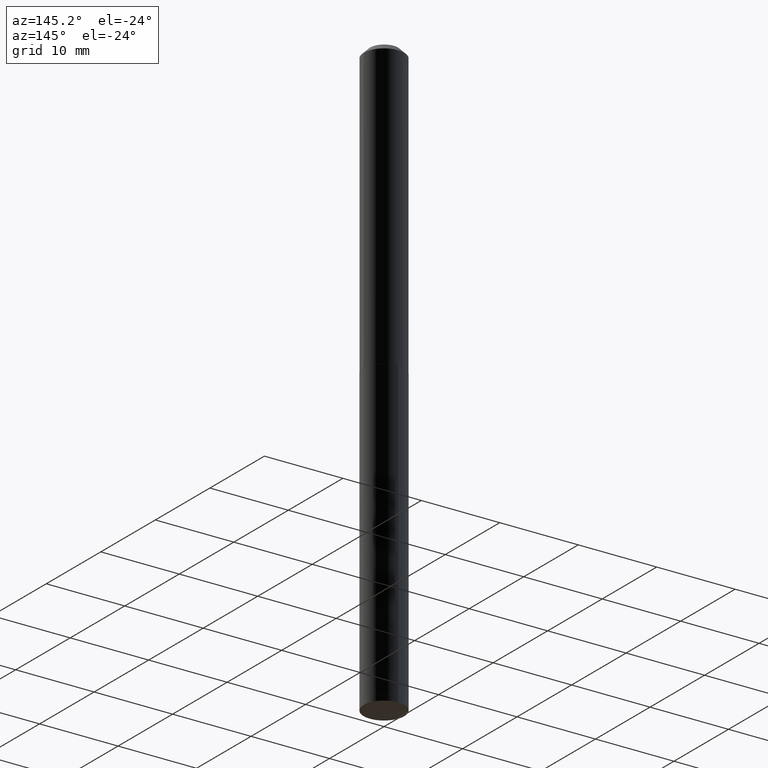
[diagram: clean part render]
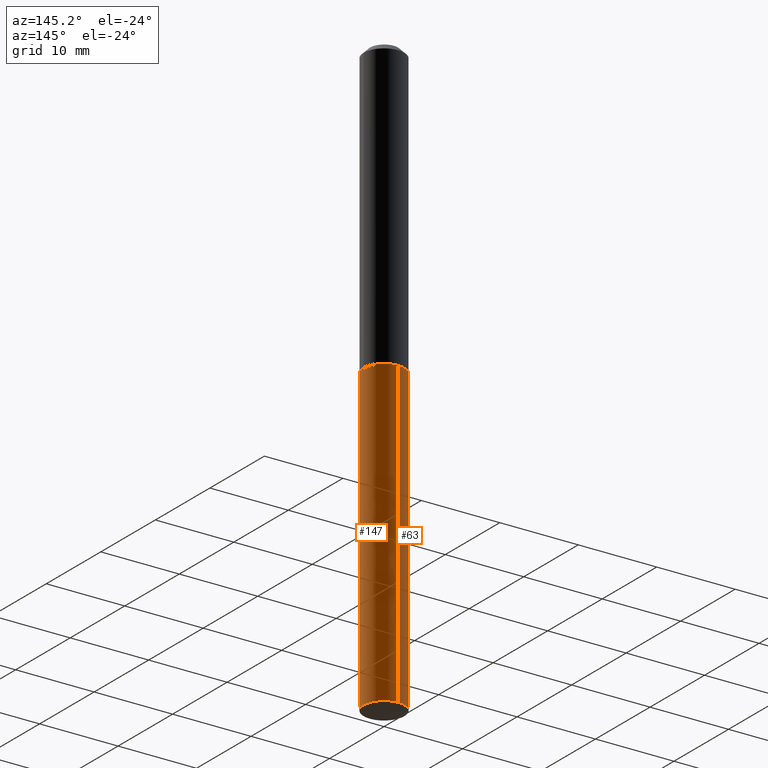
[diagram: same view with one multi-face feature highlighted, each face labeled with its STEP entity id]
A machine part, auxiliary view. The highlighted faces form ONE feature: a constant-radius fillet chain: 2 tangent blend faces with common blend radius 2.5794 mm. The faces share edges in the B-rep.
Their STEP definitions:
[1] entity #63 (Cylinder):
#3 = LINE ( 'NONE', #76, #219 ) ;
#16 = CIRCLE ( 'NONE', #227, 0.1015500000000000014 ) ;
#19 = CARTESIAN_POINT ( 'NONE',  ( 3.553510722267622762E-29, -5.073471533472975620E-15, -1.453100000000000502 ) ) ;
#28 = AXIS2_PLACEMENT_3D ( 'NONE', #236, #81, #266 ) ;
#40 = CARTESIAN_POINT ( 'NONE',  ( 7.215561481644546196E-16, 0.1015499999999896485, -2.972789759508621010 ) ) ;
#41 = EDGE_CURVE ( 'NONE', #70, #62, #16, .T. ) ;
#56 = CARTESIAN_POINT ( 'NONE',  ( 7.215561481644172473E-16, 0.1015499999999949360, -1.453100000000000724 ) ) ;
#61 = AXIS2_PLACEMENT_3D ( 'NONE', #19, #354, #144 ) ;
#62 = VERTEX_POINT ( 'NONE', #232 ) ;
#63 = ADVANCED_FACE ( 'NONE', ( #380 ), #387, .T. ) ;
#70 = VERTEX_POINT ( 'NONE', #112 ) ;
#76 = CARTESIAN_POINT ( 'NONE',  ( -7.091198599190048889E-16, -0.1015500000000050806, -1.453100000000000058 ) ) ;
#81 = DIRECTION ( 'NONE',  ( -2.445476879653025939E-29, 3.491469777177614591E-15, 1.000000000000000000 ) ) ;
#90 = VECTOR ( 'NONE', #361, 39.37007874015748143 ) ;
#107 = DIRECTION ( 'NONE',  ( -2.445476879653025939E-29, 3.491469777177614591E-15, 1.000000000000000000 ) ) ;
#112 = CARTESIAN_POINT ( 'NONE',  ( 7.215561481644546196E-16, 0.1015499999999949360, -1.453100000000000724 ) ) ;
#116 = EDGE_CURVE ( 'NONE', #374, #62, #3, .T. ) ;
#117 = DIRECTION ( 'NONE',  ( -2.445476879653026220E-29, 3.491469777177614591E-15, 1.000000000000000000 ) ) ;
#139 = CARTESIAN_POINT ( 'NONE',  ( 3.553510722267622762E-29, -5.073471533472975620E-15, -1.453100000000000502 ) ) ;
#142 = DIRECTION ( 'NONE',  ( -6.982962677686266711E-15, -1.000000000000000000, 2.690150658458161520E-15 ) ) ;
#143 = CARTESIAN_POINT ( 'NONE',  ( -7.091198599189680096E-16, -0.1015500000000104236, -2.972789759508619678 ) ) ;
#144 = DIRECTION ( 'NONE',  ( -6.982962677686266711E-15, -1.000000000000000000, 2.690150658458161520E-15 ) ) ;
#155 = LINE ( 'NONE', #56, #90 ) ;
#198 = EDGE_LOOP ( 'NONE', ( #281, #228, #311, #283 ) ) ;
#208 = CIRCLE ( 'NONE', #28, 0.1015500000000000014 ) ;
#219 = VECTOR ( 'NONE', #117, 39.37007874015748143 ) ;
#221 = EDGE_CURVE ( 'NONE', #309, #70, #155, .T. ) ;
#227 = AXIS2_PLACEMENT_3D ( 'NONE', #139, #107, #142 ) ;
#228 = ORIENTED_EDGE ( 'NONE', *, *, #379, .T. ) ;
#232 = CARTESIAN_POINT ( 'NONE',  ( -7.091198599190048889E-16, -0.1015500000000050806, -1.453100000000000058 ) ) ;
#236 = CARTESIAN_POINT ( 'NONE',  ( 7.269876893391419667E-29, -1.037942239948364055E-14, -2.972789759508620122 ) ) ;
#266 = DIRECTION ( 'NONE',  ( -6.982962677686266711E-15, -1.000000000000000000, 5.380301316916323039E-15 ) ) ;
#281 = ORIENTED_EDGE ( 'NONE', *, *, #221, .F. ) ;
#283 = ORIENTED_EDGE ( 'NONE', *, *, #41, .F. ) ;
#309 = VERTEX_POINT ( 'NONE', #40 ) ;
#311 = ORIENTED_EDGE ( 'NONE', *, *, #116, .T. ) ;
#354 = DIRECTION ( 'NONE',  ( -2.445476879653025939E-29, 3.491469777177614591E-15, 1.000000000000000000 ) ) ;
#361 = DIRECTION ( 'NONE',  ( -2.445476879653026220E-29, 3.491469777177614591E-15, 1.000000000000000000 ) ) ;
#374 = VERTEX_POINT ( 'NONE', #143 ) ;
#379 = EDGE_CURVE ( 'NONE', #309, #374, #208, .T. ) ;
#380 = FACE_OUTER_BOUND ( 'NONE', #198, .T. ) ;
#387 = CYLINDRICAL_SURFACE ( 'NONE', #61, 0.1015500000000000014 ) ;
[2] entity #147 (Cylinder):
#3 = LINE ( 'NONE', #76, #219 ) ;
#15 = ORIENTED_EDGE ( 'NONE', *, *, #67, .F. ) ;
#37 = ORIENTED_EDGE ( 'NONE', *, *, #221, .T. ) ;
#40 = CARTESIAN_POINT ( 'NONE',  ( 7.215561481644546196E-16, 0.1015499999999896485, -2.972789759508621010 ) ) ;
#55 = FACE_OUTER_BOUND ( 'NONE', #136, .T. ) ;
#56 = CARTESIAN_POINT ( 'NONE',  ( 7.215561481644172473E-16, 0.1015499999999949360, -1.453100000000000724 ) ) ;
#62 = VERTEX_POINT ( 'NONE', #232 ) ;
#67 = EDGE_CURVE ( 'NONE', #62, #70, #385, .T. ) ;
#70 = VERTEX_POINT ( 'NONE', #112 ) ;
#76 = CARTESIAN_POINT ( 'NONE',  ( -7.091198599190048889E-16, -0.1015500000000050806, -1.453100000000000058 ) ) ;
#88 = DIRECTION ( 'NONE',  ( -6.982962677686266711E-15, -1.000000000000000000, 5.380301316916323039E-15 ) ) ;
#90 = VECTOR ( 'NONE', #361, 39.37007874015748143 ) ;
#110 = CARTESIAN_POINT ( 'NONE',  ( 3.553510722267622762E-29, -5.073471533472975620E-15, -1.453100000000000502 ) ) ;
#112 = CARTESIAN_POINT ( 'NONE',  ( 7.215561481644546196E-16, 0.1015499999999949360, -1.453100000000000724 ) ) ;
#116 = EDGE_CURVE ( 'NONE', #374, #62, #3, .T. ) ;
#117 = DIRECTION ( 'NONE',  ( -2.445476879653026220E-29, 3.491469777177614591E-15, 1.000000000000000000 ) ) ;
#119 = CARTESIAN_POINT ( 'NONE',  ( 7.269876893391419667E-29, -1.037942239948364055E-14, -2.972789759508620122 ) ) ;
#136 = EDGE_LOOP ( 'NONE', ( #370, #37, #15, #308 ) ) ;
#143 = CARTESIAN_POINT ( 'NONE',  ( -7.091198599189680096E-16, -0.1015500000000104236, -2.972789759508619678 ) ) ;
#147 = ADVANCED_FACE ( 'NONE', ( #55 ), #325, .T. ) ;
#155 = LINE ( 'NONE', #56, #90 ) ;
#185 = EDGE_CURVE ( 'NONE', #374, #309, #326, .T. ) ;
#214 = DIRECTION ( 'NONE',  ( -2.445476879653025939E-29, 3.491469777177614591E-15, 1.000000000000000000 ) ) ;
#216 = AXIS2_PLACEMENT_3D ( 'NONE', #119, #246, #88 ) ;
#219 = VECTOR ( 'NONE', #117, 39.37007874015748143 ) ;
#221 = EDGE_CURVE ( 'NONE', #309, #70, #155, .T. ) ;
#232 = CARTESIAN_POINT ( 'NONE',  ( -7.091198599190048889E-16, -0.1015500000000050806, -1.453100000000000058 ) ) ;
#235 = CARTESIAN_POINT ( 'NONE',  ( 3.553510722267622762E-29, -5.073471533472975620E-15, -1.453100000000000502 ) ) ;
#246 = DIRECTION ( 'NONE',  ( -2.445476879653025939E-29, 3.491469777177614591E-15, 1.000000000000000000 ) ) ;
#270 = AXIS2_PLACEMENT_3D ( 'NONE', #110, #378, #350 ) ;
#273 = AXIS2_PLACEMENT_3D ( 'NONE', #235, #214, #382 ) ;
#308 = ORIENTED_EDGE ( 'NONE', *, *, #116, .F. ) ;
#309 = VERTEX_POINT ( 'NONE', #40 ) ;
#325 = CYLINDRICAL_SURFACE ( 'NONE', #270, 0.1015500000000000014 ) ;
#326 = CIRCLE ( 'NONE', #216, 0.1015500000000000014 ) ;
#350 = DIRECTION ( 'NONE',  ( -6.982962677686266711E-15, -1.000000000000000000, 2.690150658458161520E-15 ) ) ;
#361 = DIRECTION ( 'NONE',  ( -2.445476879653026220E-29, 3.491469777177614591E-15, 1.000000000000000000 ) ) ;
#370 = ORIENTED_EDGE ( 'NONE', *, *, #185, .T. ) ;
#374 = VERTEX_POINT ( 'NONE', #143 ) ;
#378 = DIRECTION ( 'NONE',  ( -2.445476879653025939E-29, 3.491469777177614591E-15, 1.000000000000000000 ) ) ;
#382 = DIRECTION ( 'NONE',  ( -6.982962677686266711E-15, -1.000000000000000000, 2.690150658458161520E-15 ) ) ;
#385 = CIRCLE ( 'NONE', #273, 0.1015500000000000014 ) ;